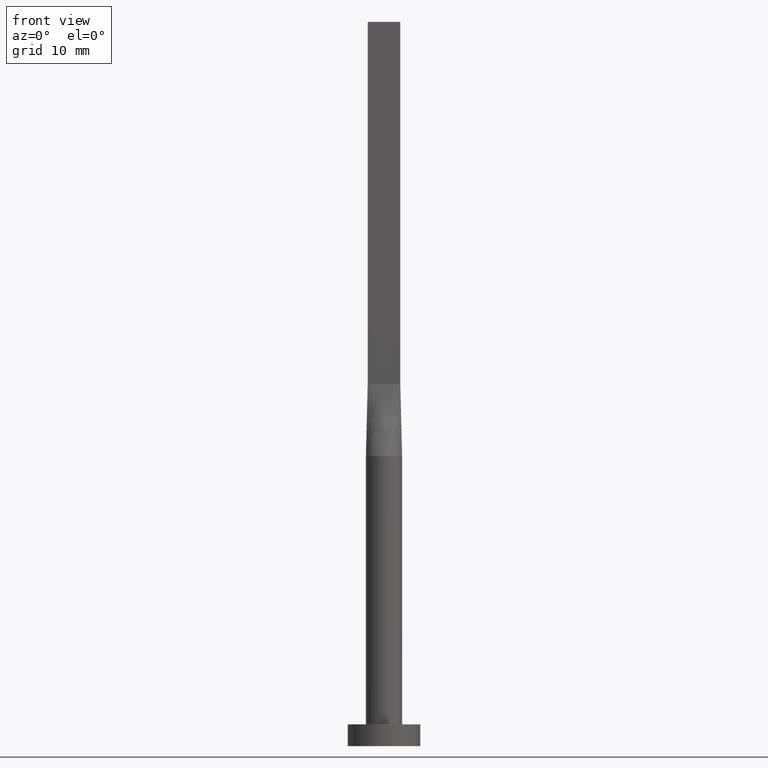
[diagram: clean part render]
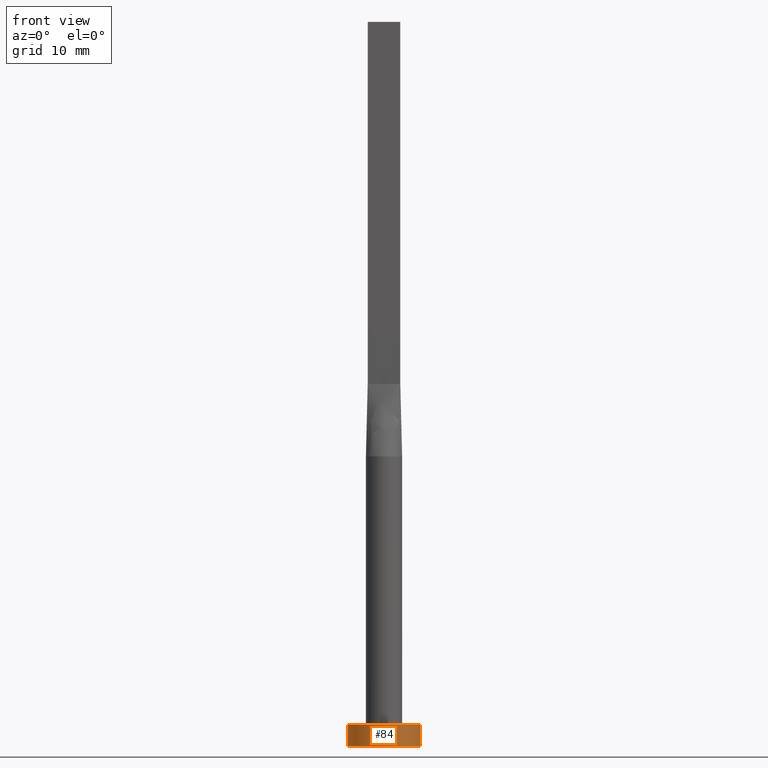
[diagram: same view with one face highlighted and labeled with its STEP entity id]
A machine part, front view. The second image highlights one B-rep face of the part: STEP entity #84.
In plain terms, the highlighted cylindrical surface (edge-blend (fillet) strip) has radius 5 mm, axis along (-0, -0, -1).
Its self-contained STEP definition (entity closure, byte-faithful):
#4 = ORIENTED_EDGE ( 'NONE', *, *, #522, .F. ) ;
#7 = DIRECTION ( 'NONE',  ( -0.000000000000000000, -0.000000000000000000, -1.000000000000000000 ) ) ;
#19 = EDGE_LOOP ( 'NONE', ( #349, #4, #380, #216 ) ) ;
#56 = DIRECTION ( 'NONE',  ( -0.000000000000000000, -0.000000000000000000, -1.000000000000000000 ) ) ;
#59 = AXIS2_PLACEMENT_3D ( 'NONE', #116, #156, #63 ) ;
#63 = DIRECTION ( 'NONE',  ( 1.000000000000000000, 0.000000000000000000, 0.000000000000000000 ) ) ;
#84 = ADVANCED_FACE ( 'NONE', ( #290 ), #335, .T. ) ;
#86 = CARTESIAN_POINT ( 'NONE',  ( 0.000000000000000000, 0.000000000000000000, 0.000000000000000000 ) ) ;
#91 = LINE ( 'NONE', #443, #162 ) ;
#113 = DIRECTION ( 'NONE',  ( -1.000000000000000000, 0.000000000000000000, 0.000000000000000000 ) ) ;
#114 = AXIS2_PLACEMENT_3D ( 'NONE', #189, #56, #113 ) ;
#115 = VERTEX_POINT ( 'NONE', #322 ) ;
#116 = CARTESIAN_POINT ( 'NONE',  ( 0.000000000000000000, 0.000000000000000000, 3.000000000000000000 ) ) ;
#143 = CARTESIAN_POINT ( 'NONE',  ( -5.000000000000000000, 0.000000000000000000, 0.000000000000000000 ) ) ;
#148 = DIRECTION ( 'NONE',  ( -0.000000000000000000, -0.000000000000000000, -1.000000000000000000 ) ) ;
#156 = DIRECTION ( 'NONE',  ( 0.000000000000000000, 0.000000000000000000, 1.000000000000000000 ) ) ;
#162 = VECTOR ( 'NONE', #148, 1000.000000000000000 ) ;
#189 = CARTESIAN_POINT ( 'NONE',  ( 0.000000000000000000, 0.000000000000000000, 3.000000000000000000 ) ) ;
#214 = EDGE_CURVE ( 'NONE', #547, #384, #368, .T. ) ;
#216 = ORIENTED_EDGE ( 'NONE', *, *, #430, .T. ) ;
#228 = CARTESIAN_POINT ( 'NONE',  ( -5.000000000000000000, 0.000000000000000000, 3.000000000000000000 ) ) ;
#266 = DIRECTION ( 'NONE',  ( 1.000000000000000000, 0.000000000000000000, 0.000000000000000000 ) ) ;
#270 = DIRECTION ( 'NONE',  ( 0.000000000000000000, 0.000000000000000000, 1.000000000000000000 ) ) ;
#290 = FACE_OUTER_BOUND ( 'NONE', #19, .T. ) ;
#322 = CARTESIAN_POINT ( 'NONE',  ( 5.000000000000000000, 6.123233995736766282E-16, 0.000000000000000000 ) ) ;
#335 = CYLINDRICAL_SURFACE ( 'NONE', #114, 5.000000000000000000 ) ;
#337 = AXIS2_PLACEMENT_3D ( 'NONE', #86, #270, #266 ) ;
#349 = ORIENTED_EDGE ( 'NONE', *, *, #424, .F. ) ;
#368 = LINE ( 'NONE', #228, #400 ) ;
#380 = ORIENTED_EDGE ( 'NONE', *, *, #214, .T. ) ;
#384 = VERTEX_POINT ( 'NONE', #143 ) ;
#400 = VECTOR ( 'NONE', #7, 1000.000000000000000 ) ;
#409 = CARTESIAN_POINT ( 'NONE',  ( -5.000000000000000000, 0.000000000000000000, 3.000000000000000000 ) ) ;
#414 = VERTEX_POINT ( 'NONE', #497 ) ;
#424 = EDGE_CURVE ( 'NONE', #414, #115, #91, .T. ) ;
#430 = EDGE_CURVE ( 'NONE', #384, #115, #432, .T. ) ;
#432 = CIRCLE ( 'NONE', #337, 5.000000000000000000 ) ;
#443 = CARTESIAN_POINT ( 'NONE',  ( 5.000000000000000000, 6.123233995736766282E-16, 3.000000000000000000 ) ) ;
#497 = CARTESIAN_POINT ( 'NONE',  ( 5.000000000000000000, 6.123233995736766282E-16, 3.000000000000000000 ) ) ;
#522 = EDGE_CURVE ( 'NONE', #547, #414, #523, .T. ) ;
#523 = CIRCLE ( 'NONE', #59, 5.000000000000000000 ) ;
#547 = VERTEX_POINT ( 'NONE', #409 ) ;